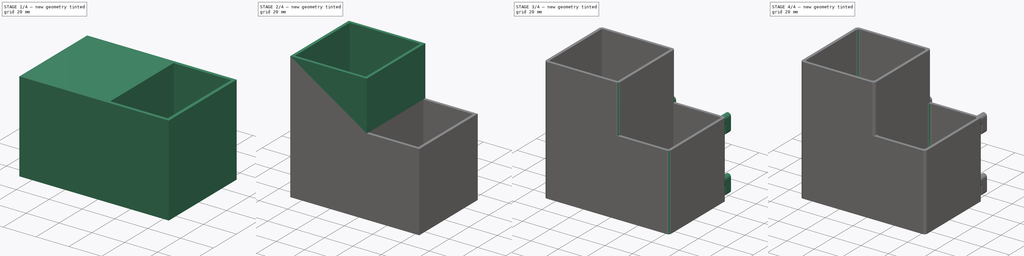
[diagram: build sequence overview — one tinted view per stage of 4, left to right]
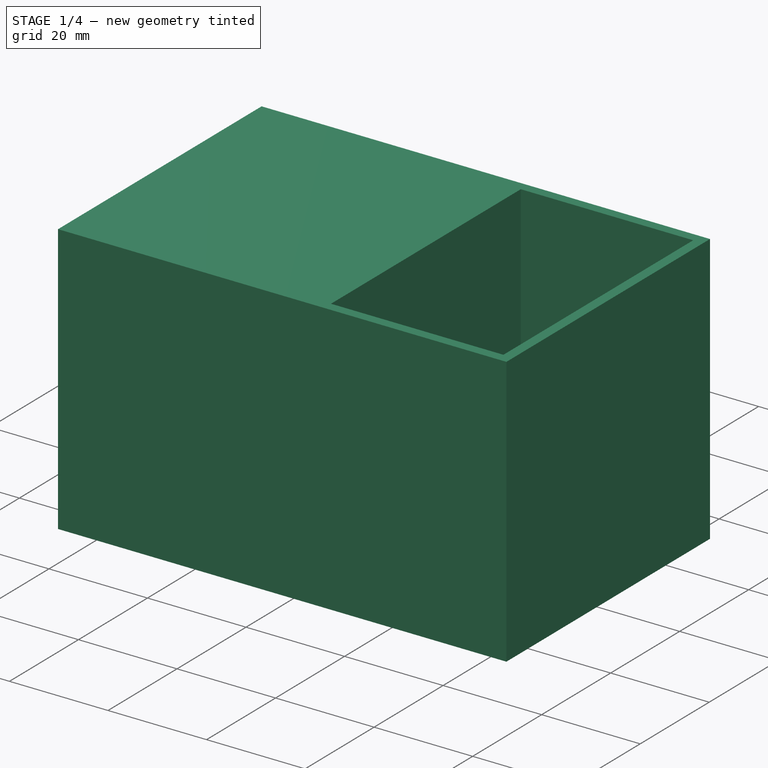
[diagram: stage 1 of 4 — iso view after this stage's code; geometry added in this stage tinted green]
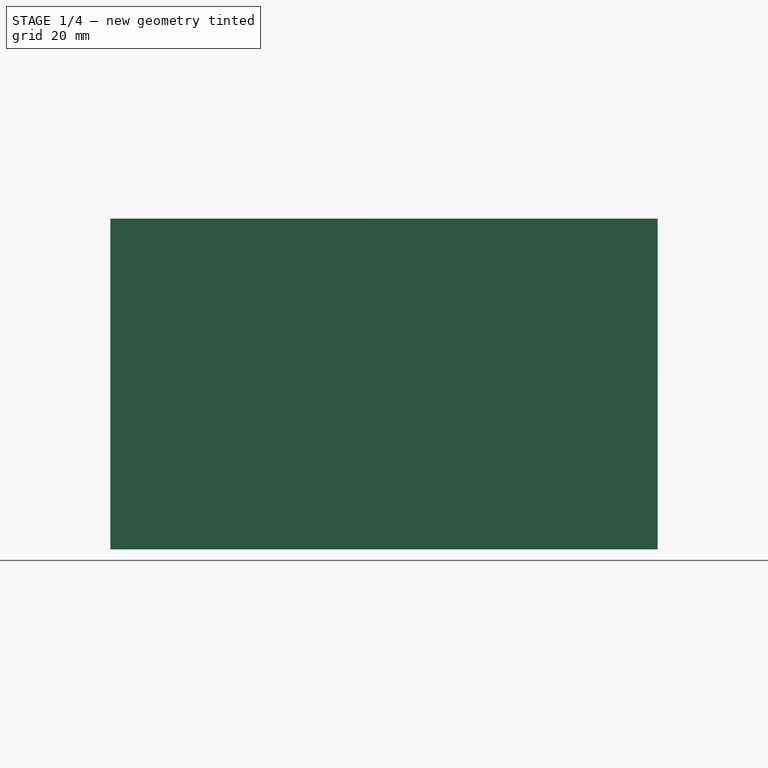
[diagram: stage 1 of 4 — front view after this stage's code; geometry added in this stage tinted green]
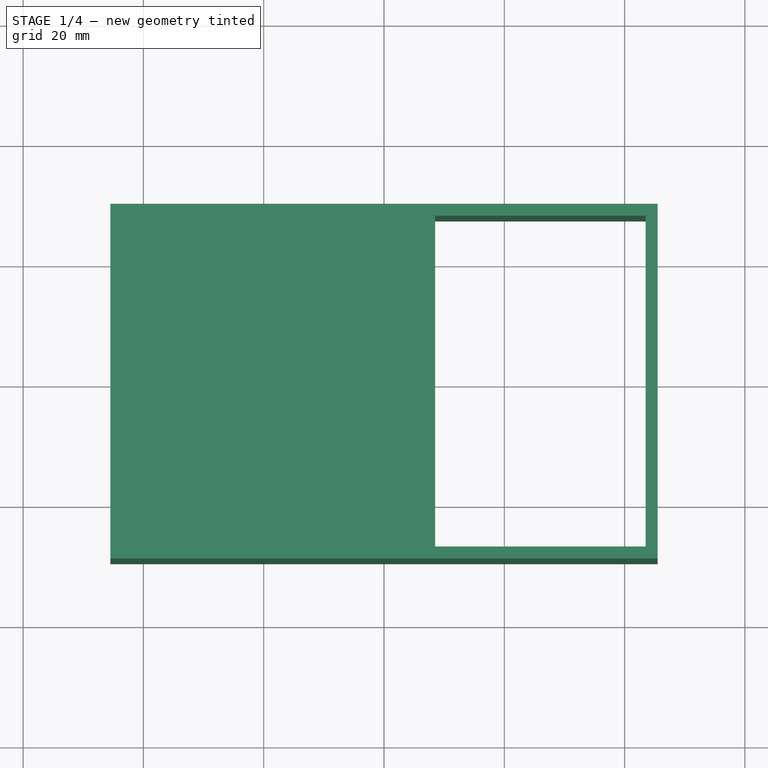
[diagram: stage 1 of 4 — top view after this stage's code; geometry added in this stage tinted green]
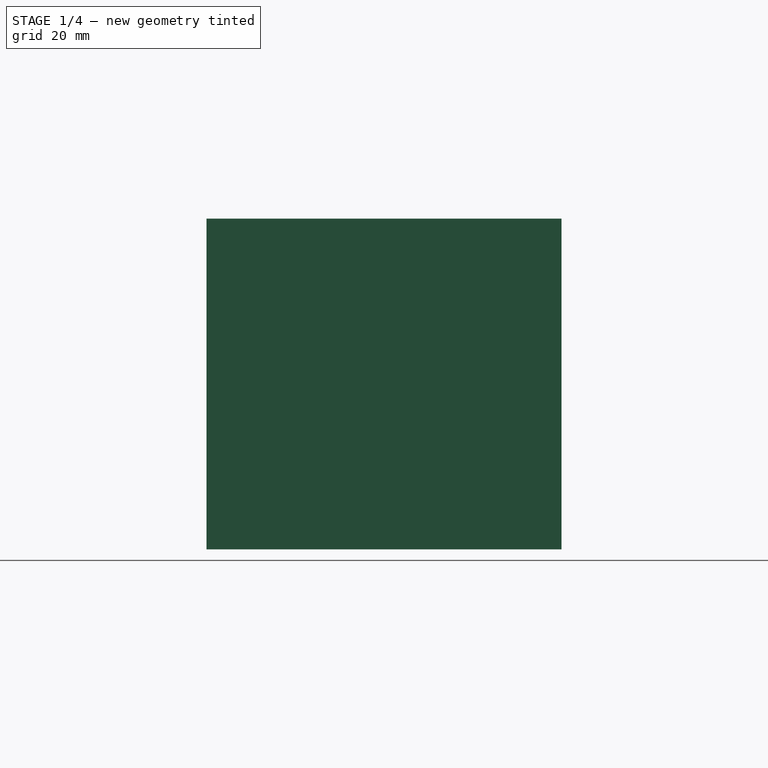
[diagram: stage 1 of 4 — right view after this stage's code; geometry added in this stage tinted green]
FCSTD DOCUMENT  (FreeCAD 1.0R39285 (Git))
Label: 01_Skadis_Glue_Gun_Holder
License: All rights reserved
LicenseURL: https://en.wikipedia.org/wiki/All_rights_reserved
objects: Sketcher::SketchObject×6, PartDesign::Pad×4, PartDesign::Fillet×3, PartDesign::Pocket×2, PartDesign::Body×1
note: 40 computed .brp shape members not serialized (recipe doc carries the construction recipe); baked Part::Feature solids carry a one-line shape summary decoded from their .brp

FEATURE [Sketcher::SketchObject] Sketch
  ArcFitTolerance = 1e-06
  AttachmentSupport = -> [XY_Plane]
  FullyConstrained = true
  MakeInternals = false
  MapMode = 5
  sketch-geometry (4):
    g0: LineSegment StartX=-45.5 StartY=29.5 StartZ=0 EndX=-45.5 EndY=-29.5 EndZ=0
    g1: LineSegment StartX=-45.5 StartY=-29.5 StartZ=0 EndX=45.5 EndY=-29.5 EndZ=0
    g2: LineSegment StartX=45.5 StartY=-29.5 StartZ=0 EndX=45.5 EndY=29.5 EndZ=0
    g3: LineSegment StartX=45.5 StartY=29.5 StartZ=0 EndX=-45.5 EndY=29.5 EndZ=0
  constraints (11):
    c: Coincident(g0,g1)
    c: Coincident(g1,g2)
    c: Coincident(g2,g3)
    c: Coincident(g3,g0)
    c: Vertical(g0)
    c: Vertical(g2)
    c: Horizontal(g1)
    c: Horizontal(g3)
    c: Distance(g0,g2) = 91
    c: Distance(g1,g3) = 59
    c: Symmetric(g0,g2,g-1)
FEATURE [PartDesign::Pad] Pad
  Direction = (0,0,1)
  Length = 55
  Length2 = 10
  Profile = -> Sketch
  ReferenceAxis = -> Sketch [N_Axis]
  Refine = true
  Suppressed = false
  Type = 0
FEATURE [Sketcher::SketchObject] Sketch001
  ArcFitTolerance = 1e-06
  AttachmentSupport = -> [Pad]
  ExternalGeometry = -> [Pad]
  FullyConstrained = true
  MakeInternals = false
  MapMode = 5
  Placement = pos=(0,0,55) rot=(0,0,1;0rad)
  sketch-geometry (4):
    g0: LineSegment StartX=8.5 StartY=27.5 StartZ=0 EndX=8.5 EndY=-27.5 EndZ=0
    g1: LineSegment StartX=8.5 StartY=-27.5 StartZ=0 EndX=43.5 EndY=-27.5 EndZ=0
    g2: LineSegment StartX=43.5 StartY=-27.5 StartZ=0 EndX=43.5 EndY=27.5 EndZ=0
    g3: LineSegment StartX=43.5 StartY=27.5 StartZ=0 EndX=8.5 EndY=27.5 EndZ=0
  constraints (12):
    c: Coincident(g0,g1)
    c: Coincident(g1,g2)
    c: Coincident(g2,g3)
    c: Coincident(g3,g0)
    c: Vertical(g0)
    c: Vertical(g2)
    c: Horizontal(g1)
    c: Horizontal(g3)
    c: Distance(g0,g2) = 35
    c: Distance(g1,g3) = 55
    c: DistanceY(g2,g-4) = 2
    c: DistanceX(g2,g-4) = 2
FEATURE [PartDesign::Pocket] Pocket
  BaseFeature = -> Pad
  Direction = (0,0,-1)
  Length = 0
  Length2 = 5
  Profile = -> Sketch001
  ReferenceAxis = -> Sketch001 [N_Axis]
  Refine = true
  Suppressed = false
  Type = 1
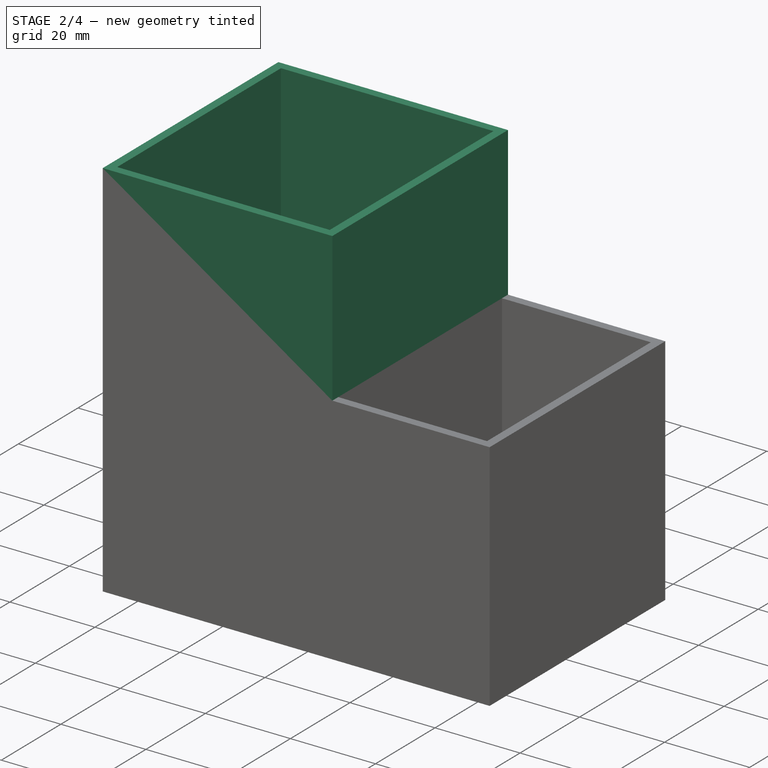
[diagram: stage 2 of 4 — iso view after this stage's code; geometry added in this stage tinted green]
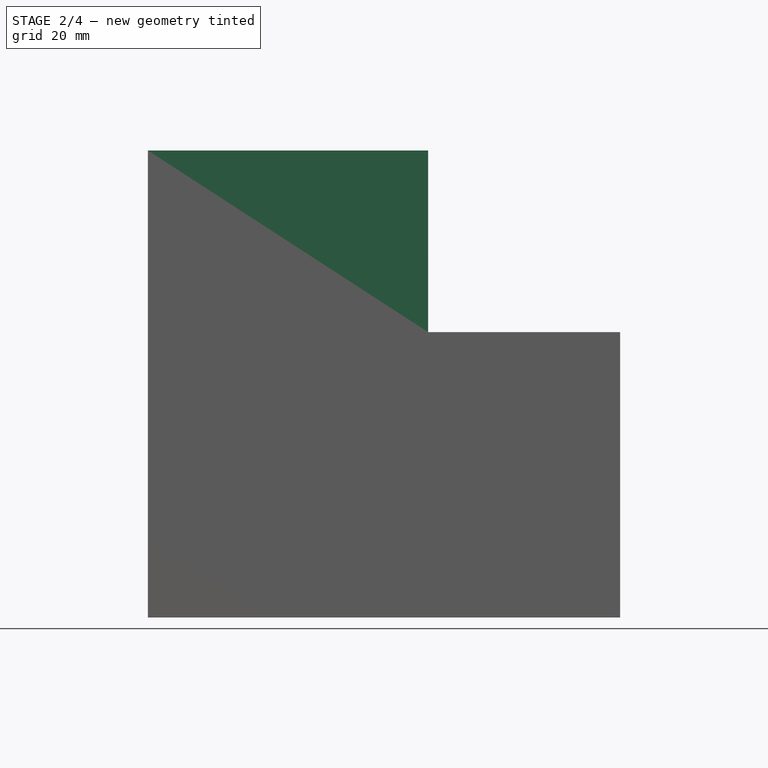
[diagram: stage 2 of 4 — front view after this stage's code; geometry added in this stage tinted green]
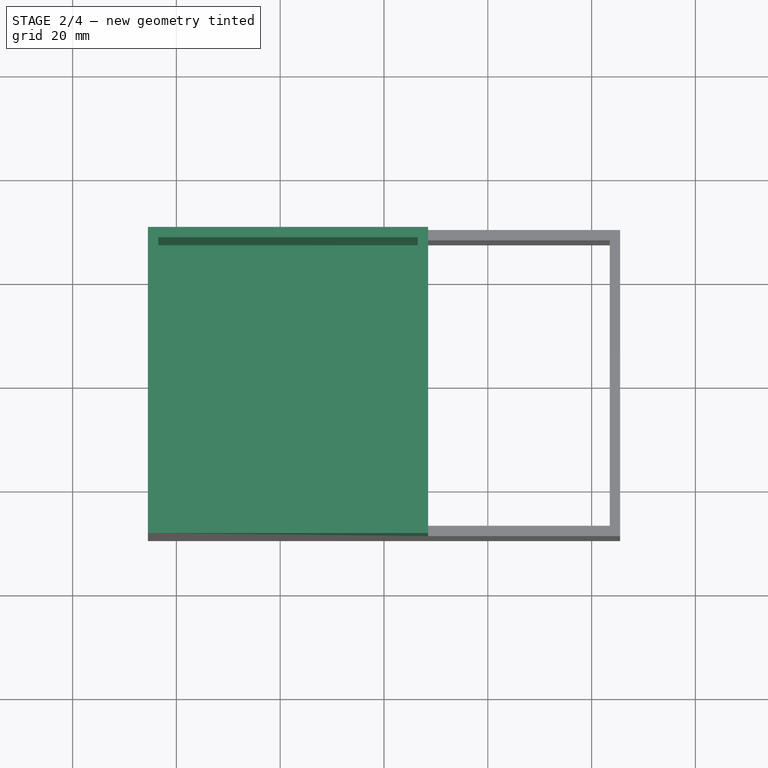
[diagram: stage 2 of 4 — top view after this stage's code; geometry added in this stage tinted green]
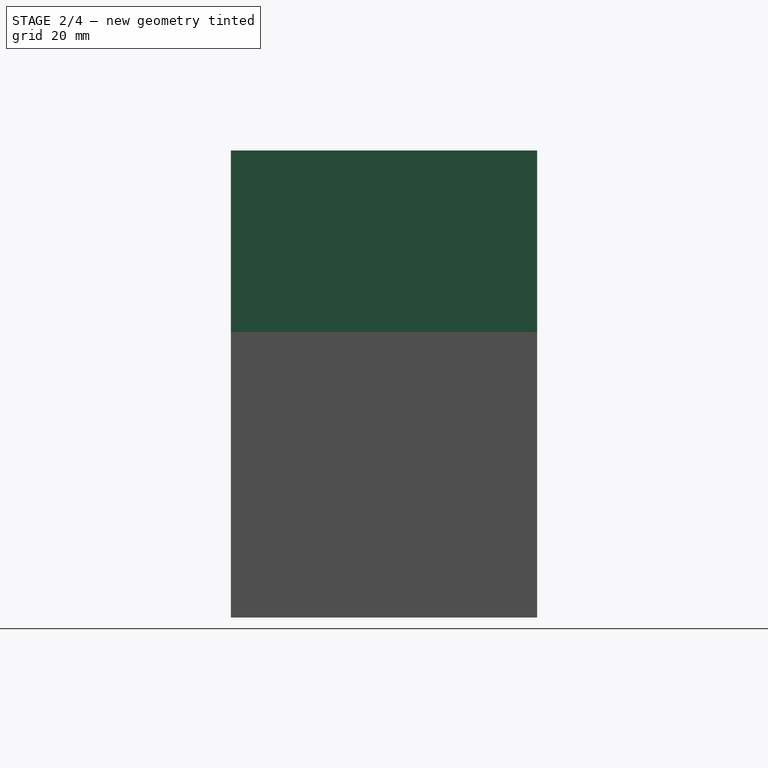
[diagram: stage 2 of 4 — right view after this stage's code; geometry added in this stage tinted green]
FEATURE [Sketcher::SketchObject] Sketch002
  ArcFitTolerance = 1e-06
  AttachmentSupport = -> [Pocket]
  ExternalGeometry = -> [Pocket]
  FullyConstrained = true
  MakeInternals = false
  MapMode = 5
  Placement = pos=(0,0,55) rot=(0,0,1;0rad)
  sketch-geometry (4):
    g0: LineSegment StartX=-45.5 StartY=29.5 StartZ=0 EndX=-45.5 EndY=-29.5 EndZ=0
    g1: LineSegment StartX=-45.5 StartY=-29.5 StartZ=0 EndX=8.5 EndY=-29.5 EndZ=0
    g2: LineSegment StartX=8.5 StartY=-29.5 StartZ=0 EndX=8.5 EndY=29.5 EndZ=0
    g3: LineSegment StartX=8.5 StartY=29.5 StartZ=0 EndX=-45.5 EndY=29.5 EndZ=0
  constraints (10):
    c: Coincident(g0,g1)
    c: Coincident(g1,g2)
    c: Coincident(g2,g3)
    c: Coincident(g3,g0)
    c: Vertical(g2)
    c: Horizontal(g1)
    c: Horizontal(g3)
    c: Coincident(g0,g-4)
    c: Coincident(g0,g-5)
    c: DistanceX(g2,g-6) = 0
FEATURE [PartDesign::Pad] Pad001
  BaseFeature = -> Pocket
  Direction = (0,0,1)
  Length = 35
  Length2 = 10
  Profile = -> Sketch002
  ReferenceAxis = -> Sketch002 [N_Axis]
  Refine = true
  Suppressed = false
  Type = 0
FEATURE [Sketcher::SketchObject] Sketch003
  ArcFitTolerance = 1e-06
  AttachmentSupport = -> [Pad001]
  ExternalGeometry = -> [Pad001]
  FullyConstrained = true
  MakeInternals = false
  MapMode = 5
  Placement = pos=(0,0,90) rot=(0,0,1;0rad)
  sketch-geometry (4):
    g0: LineSegment StartX=-43.5 StartY=27.5 StartZ=0 EndX=-43.5 EndY=-27.5 EndZ=0
    g1: LineSegment StartX=-43.5 StartY=-27.5 StartZ=0 EndX=6.5 EndY=-27.5 EndZ=0
    g2: LineSegment StartX=6.5 StartY=-27.5 StartZ=0 EndX=6.5 EndY=27.5 EndZ=0
    g3: LineSegment StartX=6.5 StartY=27.5 StartZ=0 EndX=-43.5 EndY=27.5 EndZ=0
  constraints (12):
    c: Coincident(g0,g1)
    c: Coincident(g1,g2)
    c: Coincident(g2,g3)
    c: Coincident(g3,g0)
    c: Vertical(g0)
    c: Vertical(g2)
    c: Horizontal(g1)
    c: Horizontal(g3)
    c: Distance(g0,g2) = 50
    c: Distance(g1,g3) = 55
    c: DistanceX(g-4,g0) = 2
    c: DistanceY(g0,g-4) = 2
FEATURE [PartDesign::Pocket] Pocket001
  BaseFeature = -> Pad001
  Direction = (0,0,-1)
  Length = 88
  Length2 = 5
  Profile = -> Sketch003
  ReferenceAxis = -> Sketch003 [N_Axis]
  Refine = true
  Suppressed = false
  Type = 0
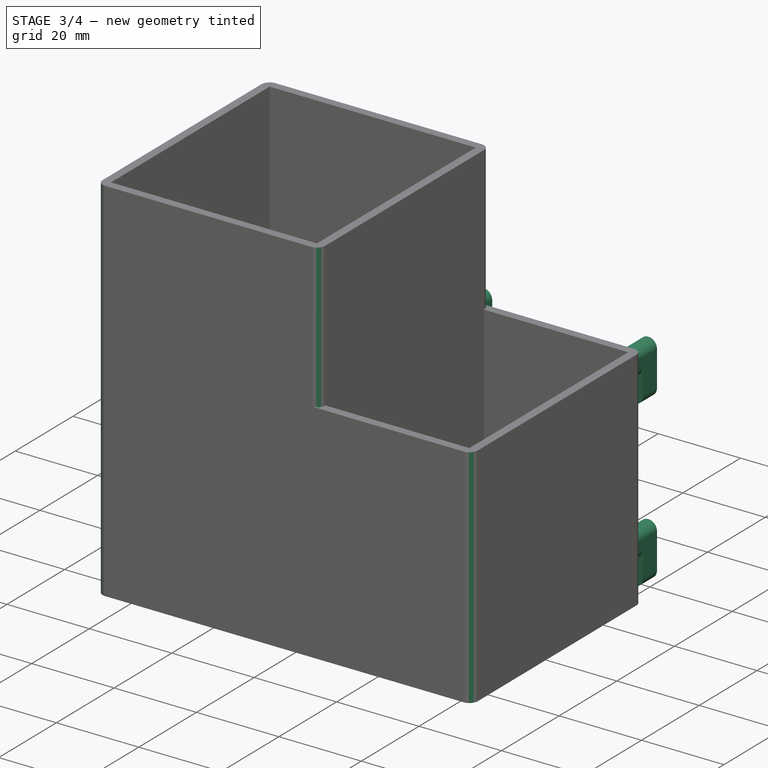
[diagram: stage 3 of 4 — iso view after this stage's code; geometry added in this stage tinted green]
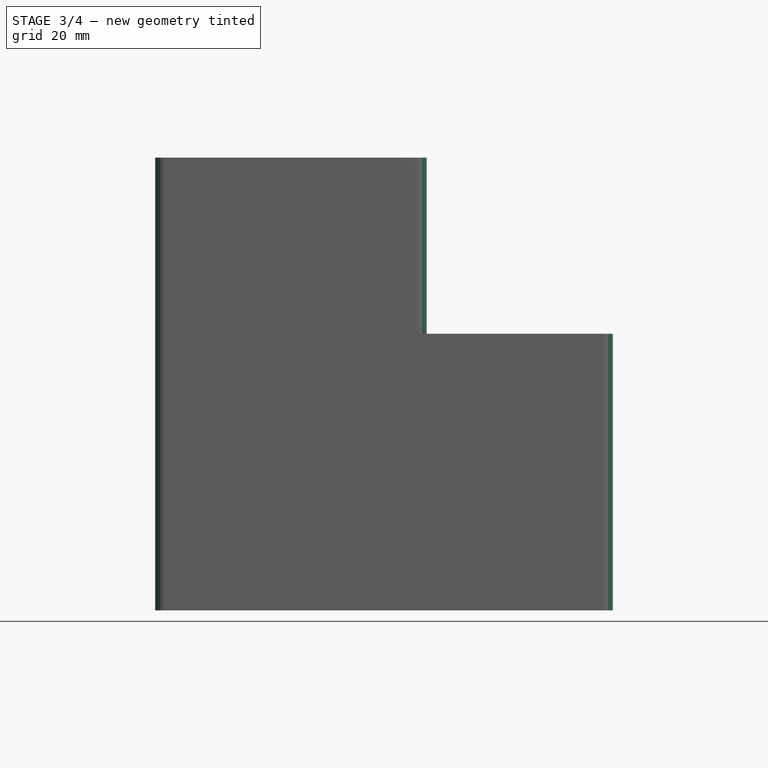
[diagram: stage 3 of 4 — front view after this stage's code; geometry added in this stage tinted green]
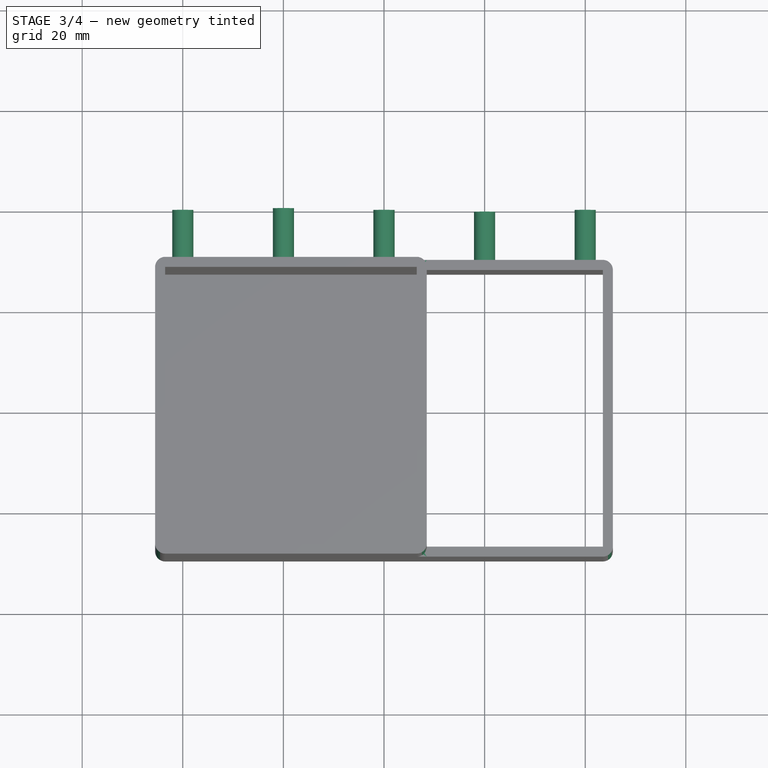
[diagram: stage 3 of 4 — top view after this stage's code; geometry added in this stage tinted green]
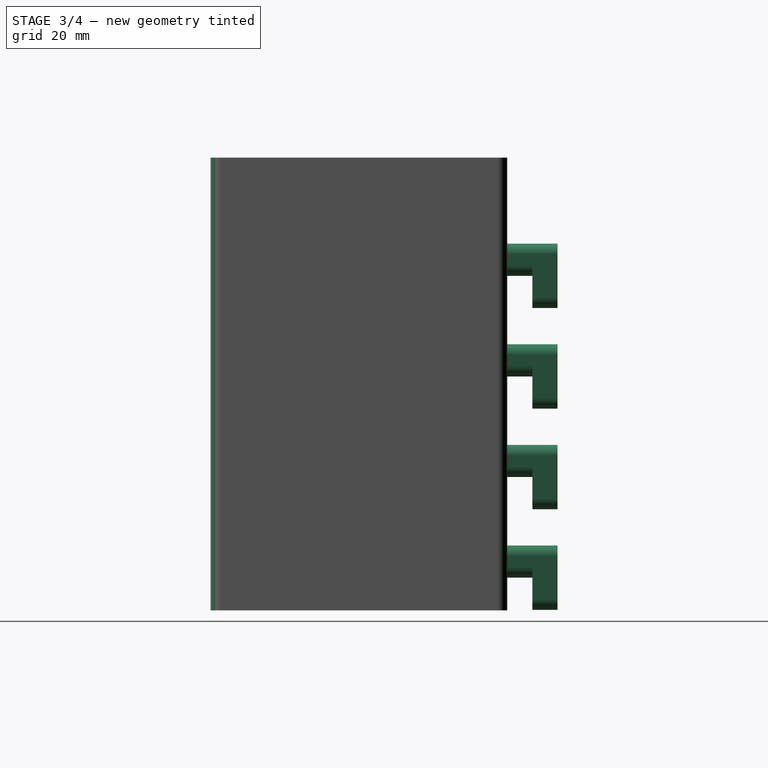
[diagram: stage 3 of 4 — right view after this stage's code; geometry added in this stage tinted green]
FEATURE [Sketcher::SketchObject] Sketch004
  ArcFitTolerance = 1e-06
  AttachmentSupport = -> [Pocket001]
  ExternalGeometry = -> [Pocket001]
  FullyConstrained = true
  MakeInternals = false
  MapMode = 5
  Placement = pos=(0,29.5,0) rot=(0,0.707107,0.707107;3.14159rad)
  sketch-geometry (36):
    g0: ArcOfCircle CenterX=0 CenterY=10.8 CenterZ=0 NormalX=0 NormalY=0 NormalZ=1 AngleXU=0 Radius=2.1 StartAngle=0 EndAngle=3.14159
    g1: ArcOfCircle CenterX=1e-16 CenterY=8.6 CenterZ=0 NormalX=0 NormalY=0 NormalZ=1 AngleXU=0 Radius=2.1 StartAngle=3.14159 EndAngle=6.28319
    g2: LineSegment StartX=2.1 StartY=10.8 StartZ=0 EndX=2.1 EndY=8.6 EndZ=0
    g3: LineSegment StartX=-2.1 StartY=10.8 StartZ=0 EndX=-2.1 EndY=8.6 EndZ=0
    g4: ArcOfCircle CenterX=-40 CenterY=10.8 CenterZ=0 NormalX=0 NormalY=0 NormalZ=1 AngleXU=0 Radius=2.1 StartAngle=0 EndAngle=3.14159
    g5: ArcOfCircle CenterX=-40 CenterY=8.6 CenterZ=0 NormalX=0 NormalY=0 NormalZ=1 AngleXU=0 Radius=2.1 StartAngle=3.14159 EndAngle=6.28319
    g6: LineSegment StartX=-37.9 StartY=10.8 StartZ=0 EndX=-37.9 EndY=8.6 EndZ=0
    g7: LineSegment StartX=-42.1 StartY=10.8 StartZ=0 EndX=-42.1 EndY=8.6 EndZ=0
    g8: ArcOfCircle CenterX=-40 CenterY=50.8 CenterZ=0 NormalX=0 NormalY=0 NormalZ=1 AngleXU=0 Radius=2.1 StartAngle=-9e-16 EndAngle=3.14159
    g9: ArcOfCircle CenterX=-40 CenterY=48.6 CenterZ=0 NormalX=0 NormalY=0 NormalZ=1 AngleXU=0 Radius=2.1 StartAngle=3.14159 EndAngle=6.28319
    g10: LineSegment StartX=-37.9 StartY=50.8 StartZ=0 EndX=-37.9 EndY=48.6 EndZ=0
    g11: LineSegment StartX=-42.1 StartY=50.8 StartZ=0 EndX=-42.1 EndY=48.6 EndZ=0
    g12: ArcOfCircle CenterX=0 CenterY=50.8 CenterZ=0 NormalX=0 NormalY=0 NormalZ=1 AngleXU=0 Radius=2.1 StartAngle=8e-16 EndAngle=3.14159
    g13: ArcOfCircle CenterX=-1e-16 CenterY=48.6 CenterZ=0 NormalX=0 NormalY=0 NormalZ=1 AngleXU=0 Radius=2.1 StartAngle=3.14159 EndAngle=6.28319
    g14: LineSegment StartX=2.1 StartY=50.8 StartZ=0 EndX=2.1 EndY=48.6 EndZ=0
    g15: LineSegment StartX=-2.1 StartY=50.8 StartZ=0 EndX=-2.1 EndY=48.6 EndZ=0
    g16: ArcOfCircle CenterX=40 CenterY=50.8 CenterZ=0 NormalX=0 NormalY=0 NormalZ=1 AngleXU=0 Radius=2.1 StartAngle=-9e-16 EndAngle=3.14159
    g17: ArcOfCircle CenterX=40 CenterY=48.6 CenterZ=0 NormalX=0 NormalY=0 NormalZ=1 AngleXU=0 Radius=2.1 StartAngle=3.14159 EndAngle=6.28319
    g18: LineSegment StartX=42.1 StartY=50.8 StartZ=0 EndX=42.1 EndY=48.6 EndZ=0
    g19: LineSegment StartX=37.9 StartY=50.8 StartZ=0 EndX=37.9 EndY=48.6 EndZ=0
    g20: ArcOfCircle CenterX=20 CenterY=30.8 CenterZ=0 NormalX=0 NormalY=0 NormalZ=1 AngleXU=0 Radius=2.1 StartAngle=4e-16 EndAngle=3.14159
    g21: ArcOfCircle CenterX=20 CenterY=28.6 CenterZ=0 NormalX=0 NormalY=0 NormalZ=1 AngleXU=0 Radius=2.1 StartAngle=3.14159 EndAngle=6.28319
    g22: LineSegment StartX=22.1 StartY=30.8 StartZ=0 EndX=22.1 EndY=28.6 EndZ=0
    g23: LineSegment StartX=17.9 StartY=30.8 StartZ=0 EndX=17.9 EndY=28.6 EndZ=0
    g24: ArcOfCircle CenterX=-20 CenterY=30.8 CenterZ=0 NormalX=0 NormalY=0 NormalZ=1 AngleXU=0 Radius=2.1 StartAngle=7e-16 EndAngle=3.14159
    g25: ArcOfCircle CenterX=-20 CenterY=28.6 CenterZ=0 NormalX=0 NormalY=0 NormalZ=1 AngleXU=0 Radius=2.1 StartAngle=3.14159 EndAngle=6.28319
    g26: LineSegment StartX=-17.9 StartY=30.8 StartZ=0 EndX=-17.9 EndY=28.6 EndZ=0
    g27: LineSegment StartX=-22.1 StartY=30.8 StartZ=0 EndX=-22.1 EndY=28.6 EndZ=0
    g28: ArcOfCircle CenterX=20 CenterY=70.8 CenterZ=0 NormalX=0 NormalY=0 NormalZ=1 AngleXU=0 Radius=2.1 StartAngle=-3.6e-15 EndAngle=3.14159
    g29: ArcOfCircle CenterX=20 CenterY=68.6 CenterZ=0 NormalX=0 NormalY=0 NormalZ=1 AngleXU=0 Radius=2.1 StartAngle=3.14159 EndAngle=6.28319
    g30: LineSegment StartX=22.1 StartY=70.8 StartZ=0 EndX=22.1 EndY=68.6 EndZ=0
    g31: LineSegment StartX=17.9 StartY=70.8 StartZ=0 EndX=17.9 EndY=68.6 EndZ=0
    g32: ArcOfCircle CenterX=40 CenterY=10.8 CenterZ=0 NormalX=0 NormalY=0 NormalZ=1 AngleXU=0 Radius=2.1 StartAngle=0 EndAngle=3.14159
    g33: ArcOfCircle CenterX=40 CenterY=8.6 CenterZ=0 NormalX=0 NormalY=0 NormalZ=1 AngleXU=0 Radius=2.1 StartAngle=3.14159 EndAngle=6.28319
    g34: LineSegment StartX=42.1 StartY=10.8 StartZ=0 EndX=42.1 EndY=8.6 EndZ=0
    g35: LineSegment StartX=37.9 StartY=10.8 StartZ=0 EndX=37.9 EndY=8.6 EndZ=0
  constraints (90):
    c: Tangent(g0,g2) = 1.5708
    c: Tangent(g0,g3) = -1.5708
    c: Tangent(g1,g2) = 1.5708
    c: Tangent(g1,g3) = -1.5708
    c: Equal(g0,g1)
    c: Vertical(g3)
    c: Distance(g0,g1) = 2.2
    c: Radius(g0) = 2.1
    c: Tangent(g4,g6) = 1.5708
    c: Tangent(g4,g7) = -1.5708
    c: Tangent(g5,g6) = 1.5708
    c: Tangent(g5,g7) = -1.5708
    c: Equal(g4,g5)
    c: Vertical(g7)
    c: Distance(g4,g5) = 2.2
    c: Radius(g4) = 2.1
    c: Tangent(g8,g10) = 1.5708
    c: Tangent(g8,g11) = -1.5708
    c: Tangent(g9,g10) = 1.5708
    c: Tangent(g9,g11) = -1.5708
    c: Equal(g8,g9)
    c: Vertical(g11)
    c: Distance(g8,g9) = 2.2
    c: Radius(g8) = 2.1
    c: Tangent(g12,g14) = 1.5708
    c: Tangent(g12,g15) = -1.5708
    c: Tangent(g13,g14) = 1.5708
    c: Tangent(g13,g15) = -1.5708
    c: Equal(g12,g13)
    c: Vertical(g15)
    c: Distance(g12,g13) = 2.2
    c: Radius(g12) = 2.1
    c: Tangent(g16,g18) = 1.5708
    c: Tangent(g16,g19) = -1.5708
    c: Tangent(g17,g18) = 1.5708
    c: Tangent(g17,g19) = -1.5708
    c: Equal(g16,g17)
    c: Vertical(g19)
    c: Distance(g16,g17) = 2.2
    c: Radius(g16) = 2.1
    c: Tangent(g20,g22) = 1.5708
    c: Tangent(g20,g23) = -1.5708
    c: Tangent(g21,g22) = 1.5708
    c: Tangent(g21,g23) = -1.5708
    c: Equal(g20,g21)
    c: Vertical(g23)
    c: Distance(g20,g21) = 2.2
    c: Radius(g20) = 2.1
    c: Tangent(g24,g26) = 1.5708
    c: Tangent(g24,g27) = -1.5708
    c: Tangent(g25,g26) = 1.5708
    c: Tangent(g25,g27) = -1.5708
    c: Equal(g24,g25)
    c: Vertical(g27)
    c: Distance(g24,g25) = 2.2
    c: Radius(g24) = 2.1
    c: Tangent(g28,g30) = 1.5708
    c: Tangent(g28,g31) = -1.5708
    c: Tangent(g29,g30) = 1.5708
    c: Tangent(g29,g31) = -1.5708
    c: Equal(g28,g29)
    c: Vertical(g31)
    c: Distance(g28,g29) = 2.2
    c: Radius(g28) = 2.1
    c: Tangent(g32,g34) = 1.5708
    c: Tangent(g32,g35) = -1.5708
    c: Tangent(g33,g34) = 1.5708
    c: Tangent(g33,g35) = -1.5708
    c: Equal(g32,g33)
    c: Vertical(g35)
    c: Distance(g32,g33) = 2.2
    c: Radius(g32) = 2.1
    c: Horizontal(g5,g1)
    c: Horizontal(g1,g33)
    c: Horizontal(g8,g12)
    c: Horizontal(g12,g16)
    c: Horizontal(g24,g20)
    c: DistanceX(g1,g33) = 40
    c: DistanceX(g5,g1) = 40
    c: Vertical(g4,g8)
    c: Vertical(g12,g0)
    c: Vertical(g32,g16)
    c: DistanceY(g4,g8) = 40
    c: DistanceX(g8,g24) = 20
    c: DistanceY(g4,g24) = 20
    c: DistanceX(g25,g21) = 40
    c: Vertical(g29,g20)
    c: DistanceY(g12,g28) = 20
    c: DistanceY(g-1,g0) = 10.8
    c: DistanceX(g-1,g0) = 0
FEATURE [PartDesign::Pad] Pad002
  BaseFeature = -> Pocket001
  Direction = (0,1,-2e-16)
  Length = 5
  Length2 = 10
  Profile = -> Sketch004
  ReferenceAxis = -> Sketch004 [N_Axis]
  Refine = true
  Suppressed = false
  Type = 0
FEATURE [Sketcher::SketchObject] Sketch005
  ArcFitTolerance = 1e-06
  AttachmentSupport = -> [Pad002]
  ExternalGeometry = -> [Pad002]
  FullyConstrained = true
  MakeInternals = false
  MapMode = 5
  Placement = pos=(0,34.5,0) rot=(0,0.707107,0.707107;3.14159rad)
  sketch-geometry (36):
    g0: ArcOfCircle CenterX=40 CenterY=10.8 CenterZ=0 NormalX=0 NormalY=0 NormalZ=1 AngleXU=0 Radius=2.1 StartAngle=0 EndAngle=3.14159
    g1: ArcOfCircle CenterX=40 CenterY=2.2 CenterZ=0 NormalX=0 NormalY=0 NormalZ=1 AngleXU=0 Radius=2.1 StartAngle=3.14159 EndAngle=6.28319
    g2: LineSegment StartX=42.1 StartY=10.8 StartZ=0 EndX=42.1 EndY=2.2 EndZ=0
    g3: LineSegment StartX=37.9 StartY=10.8 StartZ=0 EndX=37.9 EndY=2.2 EndZ=0
    g4: ArcOfCircle CenterX=-40 CenterY=10.8 CenterZ=0 NormalX=0 NormalY=0 NormalZ=1 AngleXU=0 Radius=2.1 StartAngle=1e-16 EndAngle=3.14159
    g5: ArcOfCircle CenterX=-40 CenterY=2.2 CenterZ=0 NormalX=0 NormalY=0 NormalZ=1 AngleXU=0 Radius=2.1 StartAngle=3.14159 EndAngle=6.28319
    g6: LineSegment StartX=-37.9 StartY=10.8 StartZ=0 EndX=-37.9 EndY=2.2 EndZ=0
    g7: LineSegment StartX=-42.1 StartY=10.8 StartZ=0 EndX=-42.1 EndY=2.2 EndZ=0
    g8: ArcOfCircle CenterX=-20 CenterY=30.8 CenterZ=0 NormalX=0 NormalY=0 NormalZ=1 AngleXU=0 Radius=2.1 StartAngle=9e-16 EndAngle=3.14159
    g9: ArcOfCircle CenterX=-20 CenterY=22.2 CenterZ=0 NormalX=0 NormalY=0 NormalZ=1 AngleXU=0 Radius=2.1 StartAngle=3.14159 EndAngle=6.28319
    g10: LineSegment StartX=-17.9 StartY=30.8 StartZ=0 EndX=-17.9 EndY=22.2 EndZ=0
    g11: LineSegment StartX=-22.1 StartY=30.8 StartZ=0 EndX=-22.1 EndY=22.2 EndZ=0
    g12: ArcOfCircle CenterX=0 CenterY=10.8 CenterZ=0 NormalX=0 NormalY=0 NormalZ=1 AngleXU=0 Radius=2.1 StartAngle=5e-16 EndAngle=3.14159
    g13: ArcOfCircle CenterX=0 CenterY=2.2 CenterZ=0 NormalX=0 NormalY=0 NormalZ=1 AngleXU=0 Radius=2.1 StartAngle=3.14159 EndAngle=6.28319
    g14: LineSegment StartX=2.1 StartY=10.8 StartZ=0 EndX=2.1 EndY=2.2 EndZ=0
    g15: LineSegment StartX=-2.1 StartY=10.8 StartZ=0 EndX=-2.1 EndY=2.2 EndZ=0
    g16: ArcOfCircle CenterX=-40 CenterY=50.8 CenterZ=0 NormalX=0 NormalY=0 NormalZ=1 AngleXU=0 Radius=2.1 StartAngle=0 EndAngle=3.14159
    g17: ArcOfCircle CenterX=-40 CenterY=42.2 CenterZ=0 NormalX=0 NormalY=0 NormalZ=1 AngleXU=0 Radius=2.1 StartAngle=3.14159 EndAngle=6.28319
    g18: LineSegment StartX=-37.9 StartY=50.8 StartZ=0 EndX=-37.9 EndY=42.2 EndZ=0
    g19: LineSegment StartX=-42.1 StartY=50.8 StartZ=0 EndX=-42.1 EndY=42.2 EndZ=0
    g20: ArcOfCircle CenterX=0 CenterY=50.8 CenterZ=0 NormalX=0 NormalY=0 NormalZ=1 AngleXU=0 Radius=2.1 StartAngle=1.3e-15 EndAngle=3.14159
    g21: ArcOfCircle CenterX=-1e-16 CenterY=42.2 CenterZ=0 NormalX=0 NormalY=0 NormalZ=1 AngleXU=0 Radius=2.1 StartAngle=3.14159 EndAngle=6.28319
    g22: LineSegment StartX=2.1 StartY=50.8 StartZ=0 EndX=2.1 EndY=42.2 EndZ=0
    g23: LineSegment StartX=-2.1 StartY=50.8 StartZ=0 EndX=-2.1 EndY=42.2 EndZ=0
    g24: ArcOfCircle CenterX=20 CenterY=30.8 CenterZ=0 NormalX=0 NormalY=0 NormalZ=1 AngleXU=0 Radius=2.1 StartAngle=0 EndAngle=3.14159
    g25: ArcOfCircle CenterX=20 CenterY=22.2 CenterZ=0 NormalX=0 NormalY=0 NormalZ=1 AngleXU=0 Radius=2.1 StartAngle=3.14159 EndAngle=6.28319
    g26: LineSegment StartX=22.1 StartY=30.8 StartZ=0 EndX=22.1 EndY=22.2 EndZ=0
    g27: LineSegment StartX=17.9 StartY=30.8 StartZ=0 EndX=17.9 EndY=22.2 EndZ=0
    g28: ArcOfCircle CenterX=40 CenterY=50.8 CenterZ=0 NormalX=0 NormalY=0 NormalZ=1 AngleXU=0 Radius=2.1 StartAngle=8e-16 EndAngle=3.14159
    g29: ArcOfCircle CenterX=40 CenterY=42.2 CenterZ=0 NormalX=0 NormalY=0 NormalZ=1 AngleXU=0 Radius=2.1 StartAngle=3.14159 EndAngle=6.28319
    g30: LineSegment StartX=42.1 StartY=50.8 StartZ=0 EndX=42.1 EndY=42.2 EndZ=0
    g31: LineSegment StartX=37.9 StartY=50.8 StartZ=0 EndX=37.9 EndY=42.2 EndZ=0
    g32: ArcOfCircle CenterX=20 CenterY=70.8 CenterZ=0 NormalX=0 NormalY=0 NormalZ=1 AngleXU=0 Radius=2.1 StartAngle=9e-16 EndAngle=3.14159
    g33: ArcOfCircle CenterX=20 CenterY=62.2 CenterZ=0 NormalX=0 NormalY=0 NormalZ=1 AngleXU=0 Radius=2.1 StartAngle=3.14159 EndAngle=6.28319
    g34: LineSegment StartX=22.1 StartY=70.8 StartZ=0 EndX=22.1 EndY=62.2 EndZ=0
    g35: LineSegment StartX=17.9 StartY=70.8 StartZ=0 EndX=17.9 EndY=62.2 EndZ=0
  constraints (81):
    c: Tangent(g0,g2) = 1.5708
    c: Tangent(g0,g3) = -1.5708
    c: Tangent(g1,g2) = 1.5708
    c: Tangent(g1,g3) = -1.5708
    c: Equal(g0,g1)
    c: Vertical(g2)
    c: Equal(g0,g-30)
    c: DistanceY(g3,g3) = 8.6
    c: Coincident(g0,g-30)
    c: Tangent(g4,g6) = 1.5708
    c: Tangent(g4,g7) = -1.5708
    c: Tangent(g5,g6) = 1.5708
    c: Tangent(g5,g7) = -1.5708
    c: Equal(g4,g5)
    c: Equal(g0,g4)
    c: Equal(g3,g7)
    c: Horizontal(g4,g4)
    c: Tangent(g8,g10) = 1.5708
    c: Tangent(g8,g11) = -1.5708
    c: Tangent(g9,g10) = 1.5708
    c: Tangent(g9,g11) = -1.5708
    c: Equal(g8,g9)
    c: Horizontal(g8,g8)
    c: Equal(g4,g8)
    c: Equal(g11,g6)
    c: Tangent(g12,g14) = 1.5708
    c: Tangent(g12,g15) = -1.5708
    c: Tangent(g13,g14) = 1.5708
    c: Tangent(g13,g15) = -1.5708
    c: Equal(g12,g13)
    c: Horizontal(g12,g12)
    c: Equal(g6,g15)
    c: Equal(g4,g12)
    c: Tangent(g16,g18) = 1.5708
    c: Tangent(g16,g19) = -1.5708
    c: Tangent(g17,g18) = 1.5708
    c: Tangent(g17,g19) = -1.5708
    c: Equal(g16,g17)
    c: Horizontal(g16,g16)
    c: Equal(g19,g14)
    c: Equal(g16,g12)
    c: Tangent(g20,g22) = 1.5708
    c: Tangent(g20,g23) = -1.5708
    c: Tangent(g21,g22) = 1.5708
    c: Tangent(g21,g23) = -1.5708
    c: Equal(g20,g21)
    c: Horizontal(g20,g20)
    c: Equal(g23,g14)
    c: Equal(g12,g20)
    c: Tangent(g24,g26) = 1.5708
    c: Tangent(g24,g27) = -1.5708
    c: Tangent(g25,g26) = 1.5708
    c: Tangent(g25,g27) = -1.5708
    c: Equal(g24,g25)
    c: Horizontal(g24,g24)
    c: Equal(g14,g27)
    c: Equal(g24,g12)
    c: Tangent(g28,g30) = 1.5708
    c: Tangent(g28,g31) = -1.5708
    c: Tangent(g29,g30) = 1.5708
    c: Tangent(g29,g31) = -1.5708
    c: Equal(g28,g29)
    c: Horizontal(g28,g28)
    c: Equal(g31,g14)
    c: Equal(g28,g12)
    c: Tangent(g32,g34) = 1.5708
    c: Tangent(g32,g35) = -1.5708
    c: Tangent(g33,g34) = 1.5708
    c: Tangent(g33,g35) = -1.5708
    c: Equal(g32,g33)
    c: Horizontal(g32,g32)
    c: Equal(g14,g35)
    c: Equal(g12,g32)
    c: Coincident(g12,g-23)
    c: Coincident(g4,g-17)
    c: Coincident(g8,g-13)
    c: Coincident(g16,g-3)
    c: Coincident(g20,g-9)
    c: Coincident(g24,g-27)
    c: Coincident(g28,g-35)
    c: Coincident(g32,g-39)
FEATURE [PartDesign::Pad] Pad003
  BaseFeature = -> Pad002
  Direction = (0,1,-2e-16)
  Length = 5
  Length2 = 10
  Profile = -> Sketch005
  ReferenceAxis = -> Sketch005 [N_Axis]
  Refine = true
  Suppressed = false
  Type = 0
FEATURE [PartDesign::Fillet] Fillet
  Base = -> Pad003 [Edge54,Edge9,Edge52,Edge12,Edge11,Edge14]
  BaseFeature = -> Pad003
  Radius = 2
  Refine = true
  SupportTransform = false
  Suppressed = false
  UseAllEdges = false
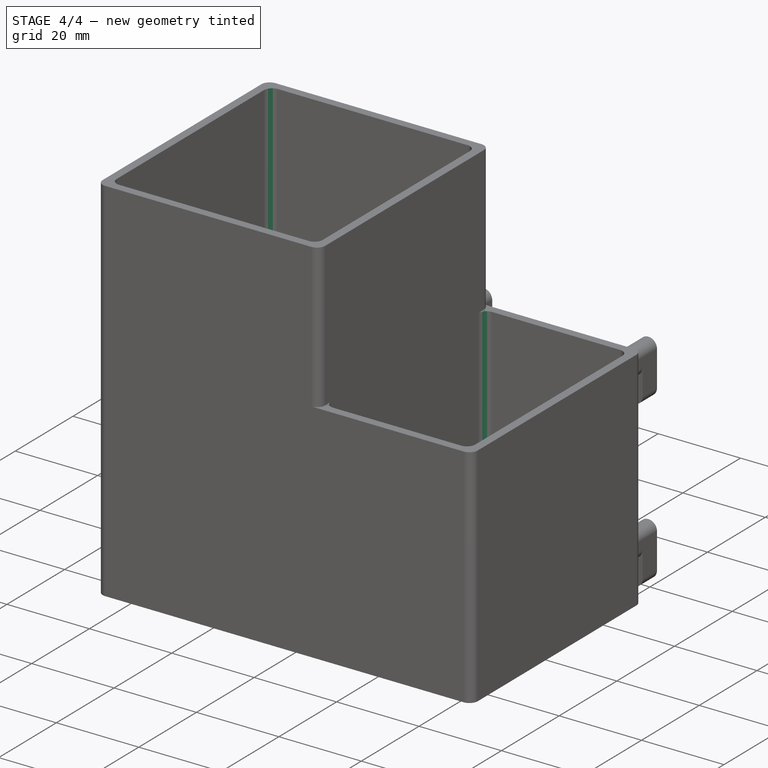
[diagram: stage 4 of 4 — iso view after this stage's code; geometry added in this stage tinted green]
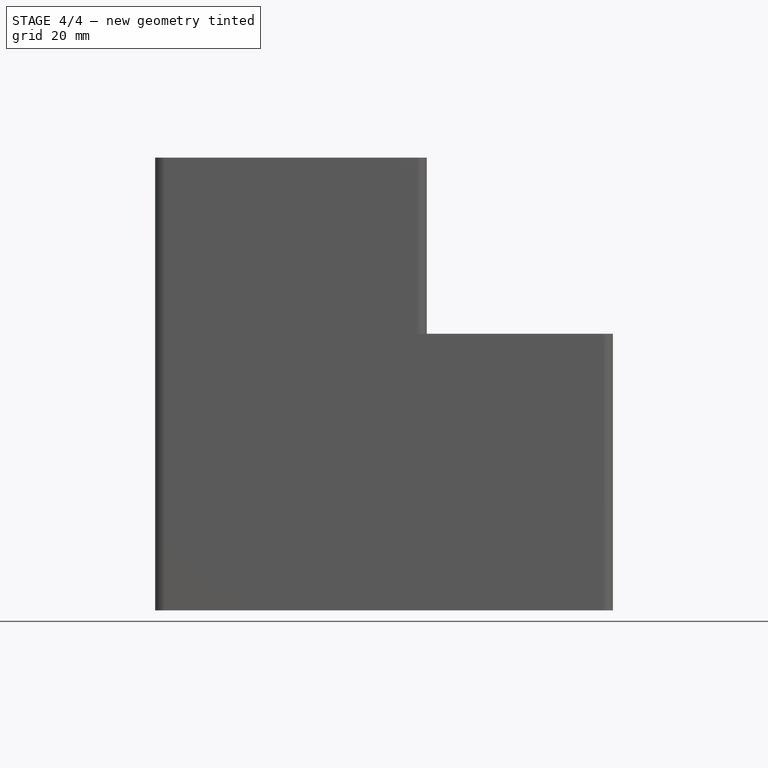
[diagram: stage 4 of 4 — front view after this stage's code; geometry added in this stage tinted green]
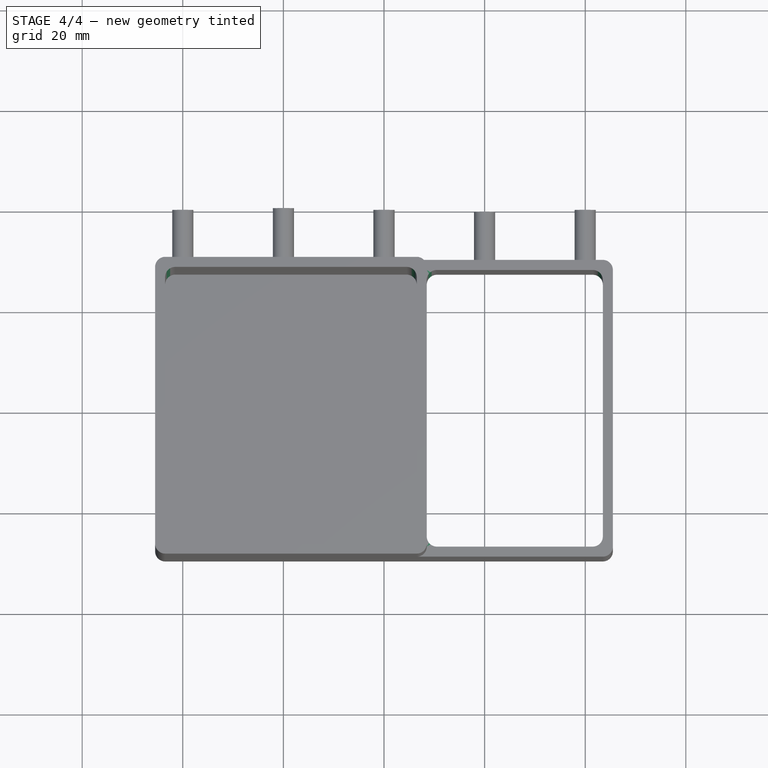
[diagram: stage 4 of 4 — top view after this stage's code; geometry added in this stage tinted green]
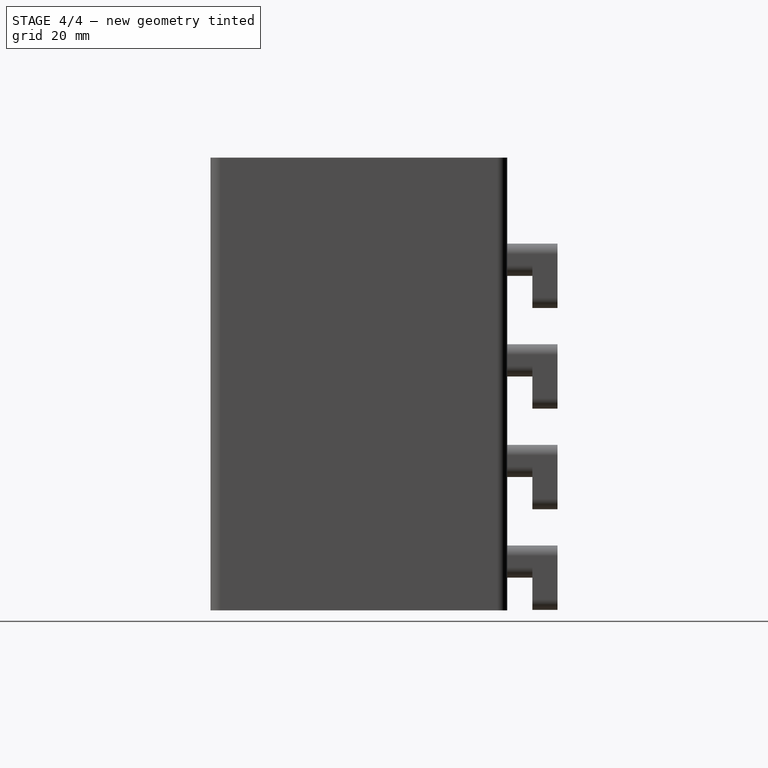
[diagram: stage 4 of 4 — right view after this stage's code; geometry added in this stage tinted green]
FEATURE [PartDesign::Fillet] Fillet001
  Base = -> Fillet [Edge198,Edge197,Edge200,Edge202]
  BaseFeature = -> Fillet
  Radius = 2
  Refine = true
  SupportTransform = false
  Suppressed = false
  UseAllEdges = false
FEATURE [PartDesign::Fillet] Fillet002
  Base = -> Fillet001 [Edge90,Edge215,Edge91,Edge216]
  BaseFeature = -> Fillet001
  Radius = 2
  Refine = true
  SupportTransform = false
  Suppressed = false
  UseAllEdges = false
FEATURE [PartDesign::Body] Body
  AllowCompound = false
  Group = -> [Sketch,Pad,Sketch001,Pocket,Sketch002,Pad001,Sketch003,Pocket001,Sketch004,Pad002,Sketch005,Pad003,Fillet,Fillet001,Fillet002]
  Origin = -> Origin
  Tip = -> Fillet002
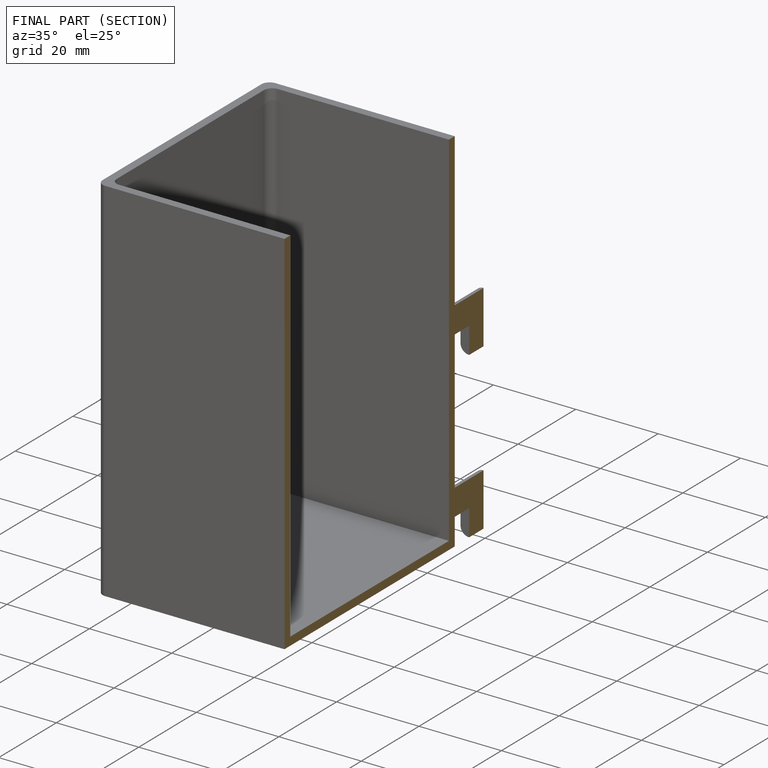
[diagram: finished part — half-section view (interior)]
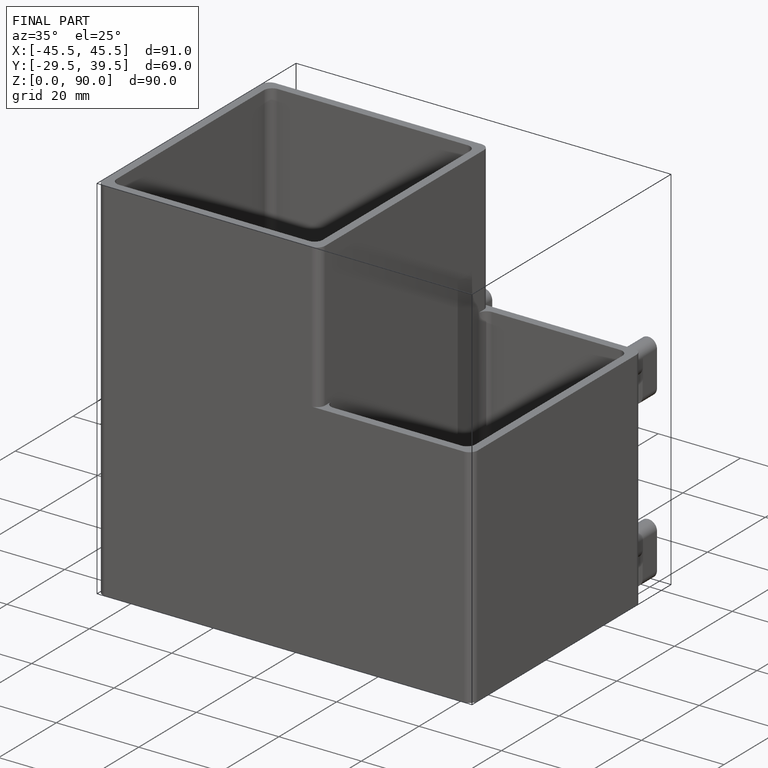
[diagram: finished part — iso view with bounding-box wireframe]
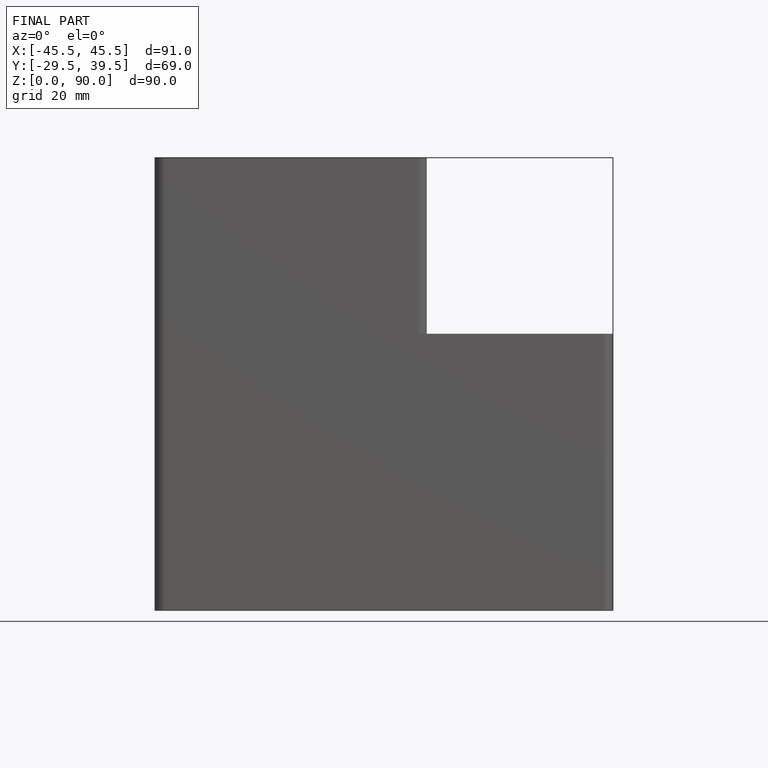
[diagram: finished part — front view with bounding-box wireframe]
